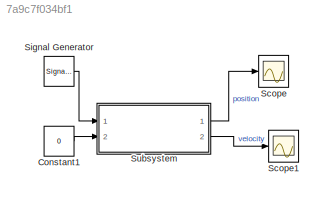
MODEL slx_7a9c7f034bf1
KIND model
CONFIG AbsTol = auto
CONFIG EnableMultiTasking = off
CONFIG FixedStep = 0.002
CONFIG MaxStep = auto
CONFIG MinStep = auto
CONFIG RelTol = 1e-3
CONFIG SampleTimeConstraint = Unconstrained
CONFIG SolverName = FixedStepAuto
CONFIG StartTime = 0.0
CONFIG StopTime = 10.0
BLOCK [Constant] Constant1
  Value = 0
BLOCK [Scope] Scope
  Floating = off
  NumInputPorts = 1
  Ports = [1]
  ScopeSpecificationString = Simulink.scopes.TimeScopeBlockCfg('CurrentConfiguration', extmgr.ConfigurationSet(extmgr.Configuration('Core','General UI',true),extmgr.Configuration('Core','Source UI',true),extmgr.Configuration('Sources','WiredSimulink',true),extmgr.Configuration('Visuals','Time Domain',true),extmgr.Configuration('Tools','Plot Navigation',true),extmgr.Configuration('Tools','Measurements',true)),'Version','2021a'...<+1ch>
BLOCK [Scope] Scope1
  Floating = off
  NumInputPorts = 1
  Ports = [1]
  ScopeSpecificationString = Simulink.scopes.TimeScopeBlockCfg('CurrentConfiguration', extmgr.ConfigurationSet(extmgr.Configuration('Core','General UI',true),extmgr.Configuration('Core','Source UI',true),extmgr.Configuration('Sources','WiredSimulink',true,'DataLoggingVariableName','ScopeData1'),extmgr.Configuration('Visuals','Time Domain',true),extmgr.Configuration('Tools','Plot Navigation',true),extmgr.Configuration('Tools',...<+40ch>
BLOCK [SignalGenerator] Signal Generator
  Amplitude = 1.5
  Frequency = 0.5
  Ports = [0, 1]
  WaveForm = square
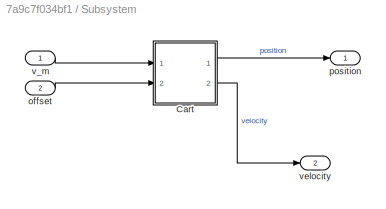
BLOCK [SubSystem] Subsystem
  Ports = [2, 2]
  RequestExecContextInheritance = off
  StopFcn = % Cart dimensions\nx_size = 0.2;\ny_size = 0.05;\nwheel_radius = 0.025\nwheel_pos = 0.08\n%%\n% Cart body\nx = [ - x_size, x_size, x_size, -x_size];\ny = [ - y_size, -y_size, y_size, y_size];\n\n%%\ng = hgtransform;\n%%\npatch('XData',x,'YData',y,'FaceColor','red','Parent',g)\n\n% Left wheel\ntheta = linspace(0, 2*pi, 15);\nl_x = - wheel_pos + wheel_radius * cos(theta);\nl_y = -(y_size + wheel_radius) + wheel_radiu...<+981ch>
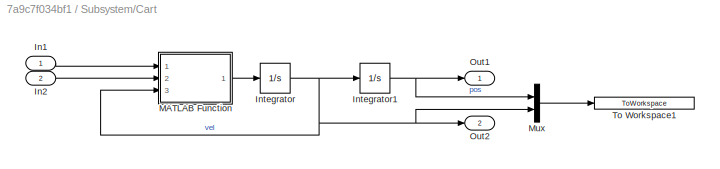
BLOCK [SubSystem] Subsystem/Cart 
  Ports = [2, 2]
  RequestExecContextInheritance = off
  TreatAsAtomicUnit = on
BLOCK [Inport] Subsystem/Cart /In1
BLOCK [Inport] Subsystem/Cart /In2
  Port = 2
BLOCK [Integrator] Subsystem/Cart /Integrator
  Ports = [1, 1]
BLOCK [Integrator] Subsystem/Cart /Integrator1
  Ports = [1, 1]
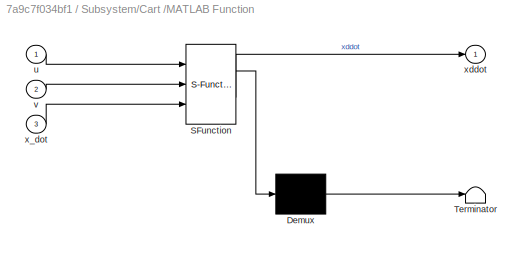
BLOCK [SubSystem] Subsystem/Cart /MATLAB Function
  ErrorFcn = Stateflow.Translate.translate
  PermitHierarchicalResolution = ExplicitOnly
  Ports = [3, 1]
  RequestExecContextInheritance = off
  SFBlockType = MATLAB Function
  TreatAsAtomicUnit = on
BLOCK [Demux] Subsystem/Cart /MATLAB Function/ Demux 
  Outputs = 1
  Ports = [1, 1]
BLOCK [S-Function] Subsystem/Cart /MATLAB Function/ SFunction 
  EnableBusSupport = on
  FunctionName = sf_sfun
  PortCounts = [3 2]
  Ports = [3, 2]
  SFcnIsStateOwnerBlock = off
  SFunctionDeploymentMode = off
  Tag = Stateflow S-Function 2
BLOCK [Terminator] Subsystem/Cart /MATLAB Function/ Terminator 
BLOCK [Inport] Subsystem/Cart /MATLAB Function/u
BLOCK [Inport] Subsystem/Cart /MATLAB Function/v
  Port = 2
BLOCK [Inport] Subsystem/Cart /MATLAB Function/x_dot
  Port = 3
BLOCK [Outport] Subsystem/Cart /MATLAB Function/xddot
BLOCK [Mux] Subsystem/Cart /Mux
  DisplayOption = bar
  Inputs = 2
  Ports = [2, 1]
BLOCK [Outport] Subsystem/Cart /Out1
BLOCK [Outport] Subsystem/Cart /Out2
  Port = 2
BLOCK [ToWorkspace] Subsystem/Cart /To Workspace1
  FixptAsFi = on
  MaxDataPoints = inf
  Ports = [1]
  SampleTime = -1
  SaveFormat = Structure With Time
  VariableName = sim_data_cart
BLOCK [Inport] Subsystem/offset 
  Port = 2
BLOCK [Outport] Subsystem/position
BLOCK [Inport] Subsystem/v_m
BLOCK [Outport] Subsystem/velocity
  Port = 2
LINE Constant1:1 -> Subsystem:2
LINE Signal Generator:1 -> Subsystem:1
LINE Subsystem/Cart /In1:1 -> Subsystem/Cart /MATLAB Function:1
LINE Subsystem/Cart /In2:1 -> Subsystem/Cart /MATLAB Function:2
NET Subsystem/Cart /Integrator1:1 -> Subsystem/Cart /Mux:1, Subsystem/Cart /Out1:1
NET Subsystem/Cart /Integrator:1 -> Subsystem/Cart /Integrator1:1, Subsystem/Cart /MATLAB Function:3, Subsystem/Cart /Mux:2, Subsystem/Cart /Out2:1
LINE Subsystem/Cart /MATLAB Function:1 -> Subsystem/Cart /Integrator:1
LINE Subsystem/Cart /Mux:1 -> Subsystem/Cart /To Workspace1:1
LINE Subsystem/Cart :1 -> Subsystem/position:1
LINE Subsystem/Cart :2 -> Subsystem/velocity:1
LINE Subsystem/offset :1 -> Subsystem/Cart :2
LINE Subsystem/v_m:1 -> Subsystem/Cart :1
LINE Subsystem:1 -> Scope:1
LINE Subsystem:2 -> Scope1:1
note: NET lines group one-source signal fan-out (src -> all destinations, sorted); 1:1 wires keep LINE
CHART Subsystem/Cart

/MATLAB Function states=1 transitions=1
  STATE_LABEL 'eML_blk_kernel()'
  STATE_LABEL 'SCRIPT:\nfunction xddot = fcn(u, v, x_dot)\n% Dynamics settings. Check the accessory file []\nalpha = 1.7189;\nbeta = 7.682;\nM = 0.455;\n% slope in radians\ntheta = 10 * pi / 180;\ng = 9.81;\nF = alpha * u - beta * x_dot;\n% Friction coefficient 0.1 is chose arbitrarily (in a reasonable range anyway)\nF_fric = -0.1 * x_dot;\nxddot = (F + F_fric)/M + v * g * sin(theta);\n'
CHART  states=0 transitions=0
